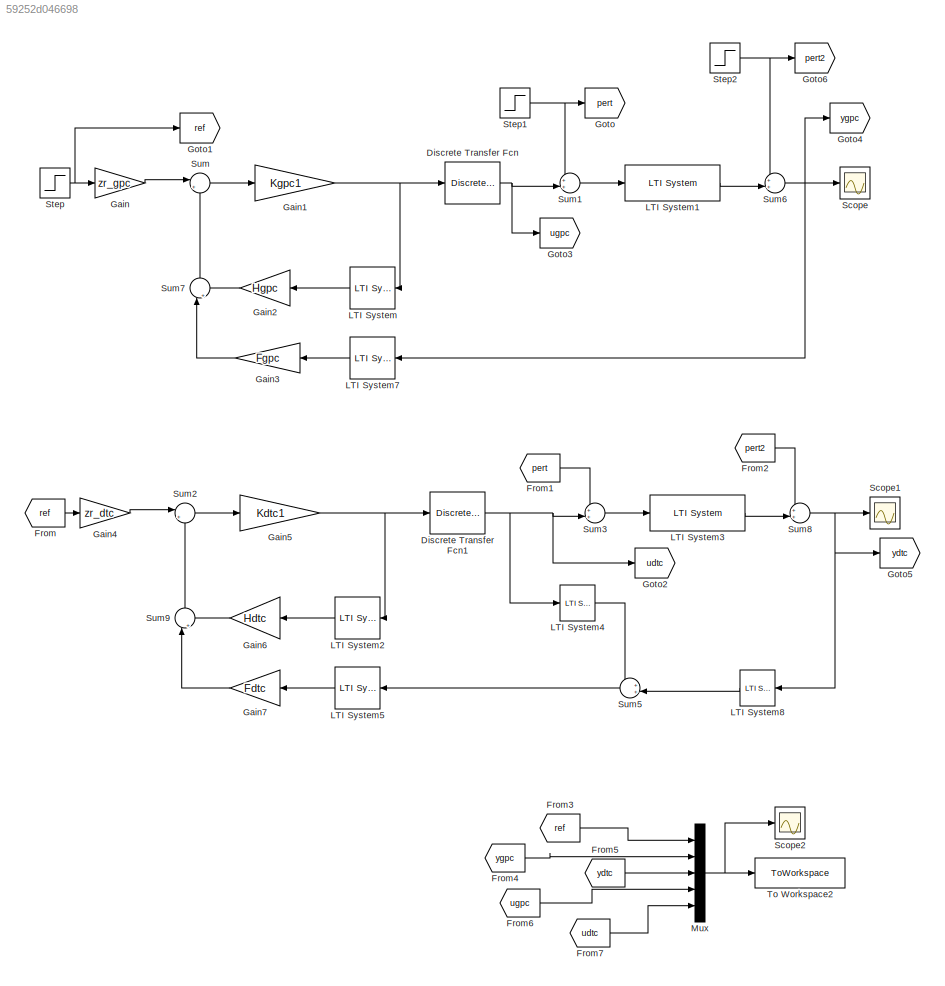
MODEL slx_59252d046698
KIND model
CONFIG AbsTol = auto
CONFIG EnableMultiTasking = off
CONFIG FixedStep = auto
CONFIG MaxStep = 0.01
CONFIG MinStep = auto
CONFIG RelTol = 1e-3
CONFIG SampleTimeConstraint = Unconstrained
CONFIG Solver = VariableStepAuto
CONFIG SolverName = VariableStepAuto
CONFIG StartTime = 0.0
CONFIG StopTime = tsim
BLOCK [DiscreteTransferFcn] Discrete Transfer Fcn
  Denominator = [1 -1]
  InputPortMap = u0
  Numerator = [1 0]
  Ports = [1, 1]
  SampleTime = Ts
BLOCK [DiscreteTransferFcn] Discrete Transfer Fcn1
  Denominator = [1 -1]
  InputPortMap = u0
  Numerator = [1 0]
  Ports = [1, 1]
  SampleTime = Ts
BLOCK [From] From
  GotoTag = ref
BLOCK [From] From1
  GotoTag = pert
BLOCK [From] From2
  GotoTag = pert2
BLOCK [From] From3
  GotoTag = ref
BLOCK [From] From4
  GotoTag = ygpc
BLOCK [From] From5
  GotoTag = ydtc
BLOCK [From] From6
  GotoTag = ugpc
BLOCK [From] From7
  GotoTag = udtc
BLOCK [Gain] Gain
  Gain = zr_gpc
  Multiplication = Matrix(K*u)
BLOCK [Gain] Gain1
  Gain = Kgpc1
  Multiplication = Matrix(K*u)
BLOCK [Gain] Gain2
  Gain = Hgpc
  Multiplication = Matrix(K*u)
  NameLocation = top
BLOCK [Gain] Gain3
  Gain = Fgpc
  Multiplication = Matrix(K*u)
  NameLocation = top
BLOCK [Gain] Gain4
  Gain = zr_dtc
  Multiplication = Matrix(K*u)
BLOCK [Gain] Gain5
  Gain = Kdtc1
  Multiplication = Matrix(K*u)
BLOCK [Gain] Gain6
  Gain = Hdtc
  Multiplication = Matrix(K*u)
  NameLocation = top
BLOCK [Gain] Gain7
  Gain = Fdtc
  Multiplication = Matrix(K*u)
  NameLocation = top
BLOCK [Goto] Goto
  GotoTag = pert
BLOCK [Goto] Goto1
  GotoTag = ref
BLOCK [Goto] Goto2
  GotoTag = udtc
BLOCK [Goto] Goto3
  GotoTag = ugpc
BLOCK [Goto] Goto4
  GotoTag = ygpc
BLOCK [Goto] Goto5
  GotoTag = ydtc
BLOCK [Goto] Goto6
  GotoTag = pert2
BLOCK [Reference] LTI System  REF=cstblocks/LTI System
  NameLocation = top
  Ports = [1, 1]
  SourceBlock = cstblocks/LTI System
  SourceProductBaseCode = CT
  SourceType = LTI Block
BLOCK [Reference] LTI System1  REF=cstblocks/LTI System
  Ports = [1, 1]
  SourceBlock = cstblocks/LTI System
  SourceProductBaseCode = CT
  SourceType = LTI Block
BLOCK [Reference] LTI System2  REF=cstblocks/LTI System
  NameLocation = top
  Ports = [1, 1]
  SourceBlock = cstblocks/LTI System
  SourceProductBaseCode = CT
  SourceType = LTI Block
BLOCK [Reference] LTI System3  REF=cstblocks/LTI System
  Ports = [1, 1]
  SourceBlock = cstblocks/LTI System
  SourceProductBaseCode = CT
  SourceType = LTI Block
BLOCK [Reference] LTI System4  REF=cstblocks/LTI System
  Ports = [1, 1]
  SourceBlock = cstblocks/LTI System
  SourceProductBaseCode = CT
  SourceType = LTI Block
BLOCK [Reference] LTI System5  REF=cstblocks/LTI System
  NameLocation = top
  Ports = [1, 1]
  SourceBlock = cstblocks/LTI System
  SourceProductBaseCode = CT
  SourceType = LTI Block
BLOCK [Reference] LTI System7  REF=cstblocks/LTI System
  NameLocation = top
  Ports = [1, 1]
  SourceBlock = cstblocks/LTI System
  SourceProductBaseCode = CT
  SourceType = LTI Block
BLOCK [Reference] LTI System8  REF=cstblocks/LTI System
  Ports = [1, 1]
  SourceBlock = cstblocks/LTI System
  SourceProductBaseCode = CT
  SourceType = LTI Block
BLOCK [Mux] Mux
  DisplayOption = bar
  Inputs = 5
  Ports = [5, 1]
BLOCK [Scope] Scope
  Floating = off
  NumInputPorts = 1
  Ports = [1]
  ScopeSpecificationString = Simulink.scopes.TimeScopeBlockCfg('CurrentConfiguration', extmgr.ConfigurationSet(extmgr.Configuration('Core','General UI',true),extmgr.Configuration('Core','Source UI',true),extmgr.Configuration('Sources','WiredSimulink',true),extmgr.Configuration('Visuals','Time Domain',true,'SerializedDisplays',{struct('MinYLimReal','-2.32803','MaxYLimReal','4.29344','YLabelReal','','MinYLimMag','0.00000','MaxY...<+1350ch>
BLOCK [Scope] Scope1
  Floating = off
  NumInputPorts = 1
  Ports = [1]
  ScopeSpecificationString = Simulink.scopes.TimeScopeBlockCfg('CurrentConfiguration', extmgr.ConfigurationSet(extmgr.Configuration('Core','General UI',true),extmgr.Configuration('Core','Source UI',true),extmgr.Configuration('Sources','WiredSimulink',true,'DataLoggingVariableName','ScopeData1'),extmgr.Configuration('Visuals','Time Domain',true,'SerializedDisplays',{struct('MinYLimReal','-0.07927','MaxYLimReal','0.71343','YLab...<+1389ch>
BLOCK [Scope] Scope2
  Floating = off
  NumInputPorts = 1
  Ports = [1]
  ScopeSpecificationString = Simulink.scopes.TimeScopeBlockCfg('CurrentConfiguration', extmgr.ConfigurationSet(extmgr.Configuration('Core','General UI',true),extmgr.Configuration('Core','Source UI',true),extmgr.Configuration('Sources','WiredSimulink',true,'DataLoggingVariableName','ScopeData1'),extmgr.Configuration('Visuals','Time Domain',true,'SerializedDisplays',{struct('MinYLimReal','-0.46873','MaxYLimReal','1.19902','YLab...<+1523ch>
BLOCK [Step] Step
  After = ampref
  SampleTime = 0
  Time = tref
BLOCK [Step] Step1
  After = amppert
  SampleTime = 0
  Time = tpert
BLOCK [Step] Step2
  After = amppert2
  SampleTime = 0
  Time = tpert2
BLOCK [Sum] Sum
  Inputs = |+-
  Ports = [2, 1]
BLOCK [Sum] Sum1
  Inputs = ++|
  Ports = [2, 1]
BLOCK [Sum] Sum2
  Inputs = |+-
  Ports = [2, 1]
BLOCK [Sum] Sum3
  Inputs = ++|
  Ports = [2, 1]
BLOCK [Sum] Sum5
  Inputs = ++|
  NameLocation = top
  Ports = [2, 1]
BLOCK [Sum] Sum6
  Inputs = ++|
  Ports = [2, 1]
BLOCK [Sum] Sum7
  Inputs = |++
  NameLocation = right
  Ports = [2, 1]
BLOCK [Sum] Sum8
  Inputs = ++|
  Ports = [2, 1]
BLOCK [Sum] Sum9
  Inputs = |++
  NameLocation = right
  Ports = [2, 1]
BLOCK [ToWorkspace] To Workspace2
  FixptAsFi = on
  MaxDataPoints = inf
  Ports = [1]
  SampleTime = -1
  VariableName = simout
NET Discrete Transfer Fcn1:1 -> Goto2:1, LTI System4:1, Sum3:2
NET Discrete Transfer Fcn:1 -> Goto3:1, Sum1:2
LINE From1:1 -> Sum3:1
LINE From2:1 -> Sum8:1
LINE From3:1 -> Mux:1
LINE From4:1 -> Mux:2
LINE From5:1 -> Mux:3
LINE From6:1 -> Mux:4
LINE From7:1 -> Mux:5
LINE From:1 -> Gain4:1
NET Gain1:1 -> Discrete Transfer Fcn:1, LTI System:1
LINE Gain2:1 -> Sum7:2
LINE Gain3:1 -> Sum7:1
LINE Gain4:1 -> Sum2:1
NET Gain5:1 -> Discrete Transfer Fcn1:1, LTI System2:1
LINE Gain6:1 -> Sum9:2
LINE Gain7:1 -> Sum9:1
LINE Gain:1 -> Sum:1
LINE LTI System1:1 -> Sum6:2
LINE LTI System2:1 -> Gain6:1
LINE LTI System3:1 -> Sum8:2
LINE LTI System4:1 -> Sum5:1
LINE LTI System5:1 -> Gain7:1
LINE LTI System7:1 -> Gain3:1
LINE LTI System8:1 -> Sum5:2
LINE LTI System:1 -> Gain2:1
NET Mux:1 -> Scope2:1, To Workspace2:1
NET Step1:1 -> Goto:1, Sum1:1
NET Step2:1 -> Goto6:1, Sum6:1
NET Step:1 -> Gain:1, Goto1:1
LINE Sum1:1 -> LTI System1:1
LINE Sum2:1 -> Gain5:1
LINE Sum3:1 -> LTI System3:1
LINE Sum5:1 -> LTI System5:1
NET Sum6:1 -> Goto4:1, LTI System7:1, Scope:1
LINE Sum7:1 -> Sum:2
NET Sum8:1 -> Goto5:1, LTI System8:1, Scope1:1
LINE Sum9:1 -> Sum2:2
LINE Sum:1 -> Gain1:1
note: NET lines group one-source signal fan-out (src -> all destinations, sorted); 1:1 wires keep LINE
